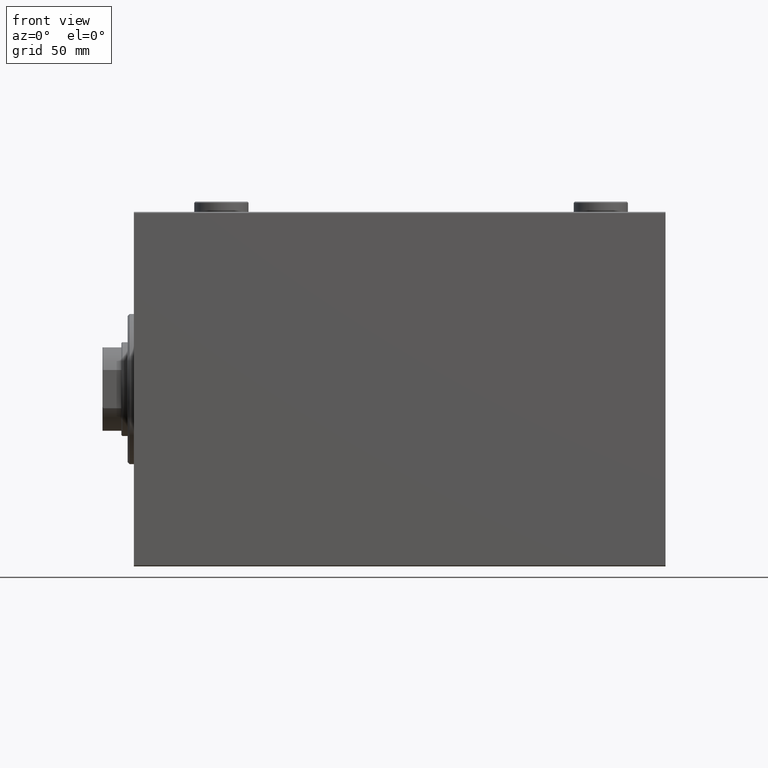
[diagram: clean part render]
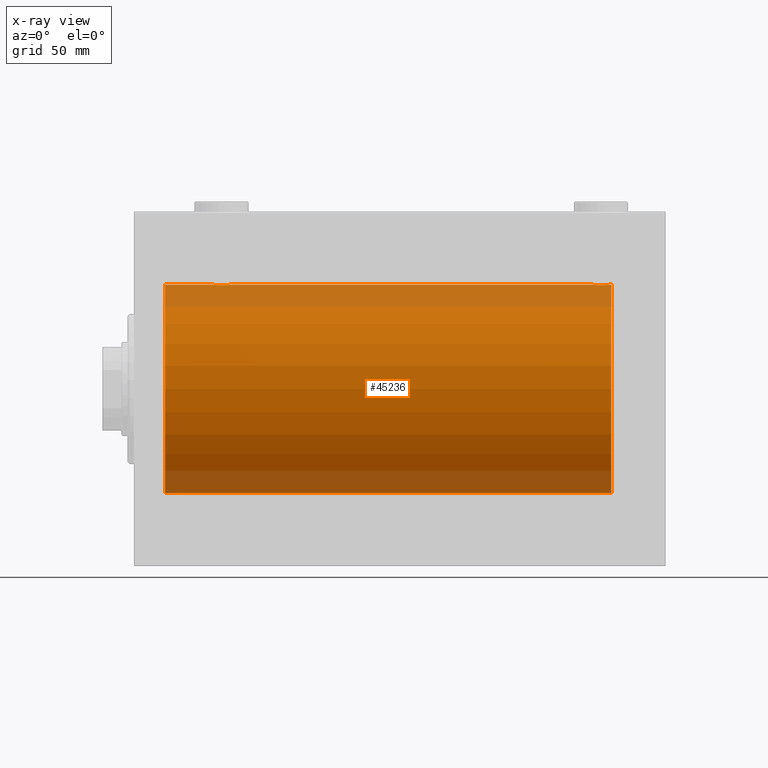
[diagram: x-ray — body ghosted, one internal face saturated and labeled with its STEP entity id]
A machine part, front view, then the same camera in x-ray: the body is ghosted and one INTERNAL B-rep face — a face not visible from any outside direction — is saturated and labeled: STEP entity #45236.
In plain terms, the highlighted cylindrical surface (partial cylindrical patch) has radius 50 mm, axis along (-1, -0, -0).
Its self-contained STEP definition (entity closure, byte-faithful):
#20 = CARTESIAN_POINT ( 'NONE',  ( 37.96727357902688738, -1.369753890039657085, 49.98188917176553048 ) ) ;
#94 = DIRECTION ( 'NONE',  ( 0.000000000000000000, 0.000000000000000000, 1.000000000000000000 ) ) ;
#213 = CARTESIAN_POINT ( 'NONE',  ( 39.41179785323800644, -3.382416624899780899, -49.88570010427955737 ) ) ;
#241 = CARTESIAN_POINT ( 'NONE',  ( 222.1178295051556120, -3.820681512513405931, -49.85392475515401145 ) ) ;
#472 = CARTESIAN_POINT ( 'NONE',  ( 219.7775736447922270, -0.5587117664567382569, -49.99763378604802710 ) ) ;
#804 = VERTEX_POINT ( 'NONE', #38915 ) ;
#933 = CARTESIAN_POINT ( 'NONE',  ( 228.1143191330600359, -1.101350136471743069, -49.98862054280448319 ) ) ;
#1008 = CARTESIAN_POINT ( 'NONE',  ( 226.8069783183931349, -3.203153387937327512, 49.89767833571684008 ) ) ;
#1234 = CARTESIAN_POINT ( 'NONE',  ( 223.4400213230435668, -4.222042462213138947, 49.82145436824653473 ) ) ;
#1255 = CIRCLE ( 'NONE', #27781, 50.00000000000000000 ) ;
#1343 = ORIENTED_EDGE ( 'NONE', *, *, #34483, .T. ) ;
#1690 = CARTESIAN_POINT ( 'NONE',  ( 224.5540856488015322, -4.222816005855221100, 49.82138837911247009 ) ) ;
#1918 = CARTESIAN_POINT ( 'NONE',  ( 221.1884693348458200, -3.199146701881678823, 49.89793607725462010 ) ) ;
#2798 = CARTESIAN_POINT ( 'NONE',  ( 38.17899418014773971, -1.881229021238131294, 49.96525240872482954 ) ) ;
#2994 = CARTESIAN_POINT ( 'NONE',  ( 37.96920203844657493, -1.375411031076047230, -49.98173289062308555 ) ) ;
#3031 = CARTESIAN_POINT ( 'NONE',  ( 42.27724927037918690, -4.250219976861652427, 49.81902879621014080 ) ) ;
#3183 = DIRECTION ( 'NONE',  ( -1.000000000000000000, -0.000000000000000000, -0.000000000000000000 ) ) ;
#3226 = CARTESIAN_POINT ( 'NONE',  ( 43.10323296034216156, -4.113647494206477795, -49.83052139214893117 ) ) ;
#3328 = CYLINDRICAL_SURFACE ( 'NONE', #8774, 50.00000000000000000 ) ;
#3493 = CARTESIAN_POINT ( 'NONE',  ( 45.37519984081966840, -2.597781786597467057, 49.93300953359123184 ) ) ;
#3697 = CARTESIAN_POINT ( 'NONE',  ( 39.87368355124921493, -3.690299572754719648, -49.86386974736159061 ) ) ;
#3727 = CARTESIAN_POINT ( 'NONE',  ( 225.3733343657904697, -4.031616700143205279, -49.83731072121799599 ) ) ;
#3922 = CARTESIAN_POINT ( 'NONE',  ( 46.22310752799000255, -0.5531336717328981800, -49.99769193709643389 ) ) ;
#3949 = CARTESIAN_POINT ( 'NONE',  ( 220.3139716787804332, -2.133925816755204874, -49.95498245321555686 ) ) ;
#4178 = CARTESIAN_POINT ( 'NONE',  ( 219.8875029891967188, -1.108337267831515982, -49.98846998601261760 ) ) ;
#4345 = EDGE_CURVE ( 'NONE', #28933, #9229, #22406, .T. ) ;
#4716 = CARTESIAN_POINT ( 'NONE',  ( 228.1124970108033949, -1.108337267831494222, 49.98846998601261760 ) ) ;
#4737 = CIRCLE ( 'NONE', #32747, 50.00000000000000000 ) ;
#4799 = CARTESIAN_POINT ( 'NONE',  ( 229.0000000000000000, 0.000000000000000000, 50.00000000000000000 ) ) ;
#4941 = CARTESIAN_POINT ( 'NONE',  ( 228.2500000000000568, -0.2808785465865649145, 50.00000000000001421 ) ) ;
#5179 = CARTESIAN_POINT ( 'NONE',  ( 220.6211828273626452, -2.593114840406131716, 49.93325460257641168 ) ) ;
#5406 = CARTESIAN_POINT ( 'NONE',  ( 226.1263164487508277, -3.690299572754730306, 49.86386974736159061 ) ) ;
#5789 = CARTESIAN_POINT ( 'NONE',  ( 228.2500000000000284, 6.123233970934102801E-15, -50.00000000000000000 ) ) ;
#6268 = CARTESIAN_POINT ( 'NONE',  ( 46.22242635520782272, -0.5587117664567085029, 49.99763378604804132 ) ) ;
#6342 = CARTESIAN_POINT ( 'NONE',  ( 229.0000000000000000, 6.123233995736764507E-15, -50.00000000000000000 ) ) ;
#6461 = CARTESIAN_POINT ( 'NONE',  ( 45.82100581985226029, -1.881229021238118859, -49.96525240872481533 ) ) ;
#6571 = CARTESIAN_POINT ( 'NONE',  ( 229.0000000000000000, 0.000000000000000000, 0.000000000000000000 ) ) ;
#6699 = CARTESIAN_POINT ( 'NONE',  ( 46.25000000000001421, -0.2773743941468467811, -50.00000000000002132 ) ) ;
#6735 = CARTESIAN_POINT ( 'NONE',  ( 46.25000000000000000, 6.549608351002387256E-15, 50.00000000000000000 ) ) ;
#6932 = CARTESIAN_POINT ( 'NONE',  ( 40.63289352445426772, -4.033756670430847180, -49.83713703490975888 ) ) ;
#6963 = CARTESIAN_POINT ( 'NONE',  ( 39.86863600553845544, -3.687400765141540138, 49.86408552998298660 ) ) ;
#7164 = CARTESIAN_POINT ( 'NONE',  ( 45.37881717263736192, -2.593114840406123722, -49.93325460257639037 ) ) ;
#7167 = CARTESIAN_POINT ( 'NONE',  ( 229.0000000000000000, 0.000000000000000000, 50.00000000000000000 ) ) ;
#7194 = CARTESIAN_POINT ( 'NONE',  ( 46.03079796155343217, -1.375411031076034352, 49.98173289062309976 ) ) ;
#7395 = CARTESIAN_POINT ( 'NONE',  ( 37.75000000000000711, -0.2808785465865692443, -50.00000000000001421 ) ) ;
#7869 = CARTESIAN_POINT ( 'NONE',  ( 227.6893715567939580, -2.128188802142370495, -49.95522967821975158 ) ) ;
#7999 = CARTESIAN_POINT ( 'NONE',  ( 229.0000000000000000, 0.000000000000000000, 50.00000000000000000 ) ) ;
#8103 = CARTESIAN_POINT ( 'NONE',  ( 221.1930216816069503, -3.203153387937343499, -49.89767833571684008 ) ) ;
#8621 = CARTESIAN_POINT ( 'NONE',  ( 220.3106284432061841, -2.128188802142365166, 49.95522967821975158 ) ) ;
#8774 = AXIS2_PLACEMENT_3D ( 'NONE', #6571, #14178, #13256 ) ;
#9167 = LINE ( 'NONE', #37361, #25554 ) ;
#9229 = VERTEX_POINT ( 'NONE', #24763 ) ;
#9666 = DIRECTION ( 'NONE',  ( -1.000000000000000000, -0.000000000000000000, -0.000000000000000000 ) ) ;
#9723 = CARTESIAN_POINT ( 'NONE',  ( 45.81839248987871116, -1.886522330773410250, 49.96505190380065642 ) ) ;
#10411 = CARTESIAN_POINT ( 'NONE',  ( 40.11255260607201478, -3.818052230167726879, 49.85412671291930309 ) ) ;
#10416 = ORIENTED_EDGE ( 'NONE', *, *, #22446, .T. ) ;
#10597 = CARTESIAN_POINT ( 'NONE',  ( 40.11782950515556934, -3.820681512513380618, -49.85392475515399724 ) ) ;
#10835 = CARTESIAN_POINT ( 'NONE',  ( 39.19302168160691480, -3.203153387937326624, -49.89767833571684008 ) ) ;
#10860 = CARTESIAN_POINT ( 'NONE',  ( 221.8736835512492576, -3.690299572754756952, -49.86386974736159061 ) ) ;
#10991 = VERTEX_POINT ( 'NONE', #7999 ) ;
#11092 = CARTESIAN_POINT ( 'NONE',  ( 225.8874473939280563, -3.818052230167736205, -49.85412671291930309 ) ) ;
#11252 = LINE ( 'NONE', #4799, #21413 ) ;
#11631 = CARTESIAN_POINT ( 'NONE',  ( 220.1789941801477539, -1.881229021238122856, 49.96525240872482954 ) ) ;
#12306 = CARTESIAN_POINT ( 'NONE',  ( 222.6266656342096724, -4.031616700143203502, 49.83731072121799599 ) ) ;
#12537 = DIRECTION ( 'NONE',  ( 0.000000000000000000, 0.000000000000000000, 1.000000000000000000 ) ) ;
#12546 = CARTESIAN_POINT ( 'NONE',  ( 224.2772492703792011, -4.250219976861659532, 49.81902879621013369 ) ) ;
#12978 = DIRECTION ( 'NONE',  ( -1.000000000000000000, 0.000000000000000000, 0.000000000000000000 ) ) ;
#13185 = CARTESIAN_POINT ( 'NONE',  ( 46.11249701080335228, -1.108337267831486228, 49.98846998601261760 ) ) ;
#13256 = DIRECTION ( 'NONE',  ( 0.000000000000000000, 0.000000000000000000, 1.000000000000000000 ) ) ;
#13272 = CARTESIAN_POINT ( 'NONE',  ( 46.25000000000000000, 6.123233970928580774E-15, -50.00000000000000000 ) ) ;
#13310 = VERTEX_POINT ( 'NONE', #27443 ) ;
#13613 = DIRECTION ( 'NONE',  ( -1.000000000000000000, -0.000000000000000000, -0.000000000000000000 ) ) ;
#13838 = CARTESIAN_POINT ( 'NONE',  ( 37.75000000000000711, -2.480809774739037926E-23, 50.00000000000000000 ) ) ;
#14078 = CARTESIAN_POINT ( 'NONE',  ( 45.68937155679385143, -2.128188802142360281, -49.95522967821973737 ) ) ;
#14111 = CARTESIAN_POINT ( 'NONE',  ( 39.18846933484581996, -3.199146701881677934, 49.89793607725461300 ) ) ;
#14178 = DIRECTION ( 'NONE',  ( -1.000000000000000000, -0.000000000000000000, -0.000000000000000000 ) ) ;
#14298 = CARTESIAN_POINT ( 'NONE',  ( 38.18160751012128884, -1.886522330773421574, -49.96505190380066352 ) ) ;
#14325 = CARTESIAN_POINT ( 'NONE',  ( 223.7227507296208842, -4.250219976861668414, -49.81902879621013369 ) ) ;
#14531 = CARTESIAN_POINT ( 'NONE',  ( 37.75000000000000711, -6.867186738287116403E-15, -50.00000000000000000 ) ) ;
#14558 = CARTESIAN_POINT ( 'NONE',  ( 219.7500000000000853, -0.2808785465865917264, -50.00000000000001421 ) ) ;
#14699 = VERTEX_POINT ( 'NONE', #42376 ) ;
#14797 = CARTESIAN_POINT ( 'NONE',  ( 228.2231075279900381, -0.5531336717329033981, -49.99769193709643389 ) ) ;
#15091 = CARTESIAN_POINT ( 'NONE',  ( 229.0000000000000000, 6.123233995736764507E-15, -50.00000000000000000 ) ) ;
#15327 = CARTESIAN_POINT ( 'NONE',  ( 225.3671064755457678, -4.033756670430863167, 49.83713703490974467 ) ) ;
#15769 = CARTESIAN_POINT ( 'NONE',  ( 228.2500000000000284, 3.884128014896634599E-15, 50.00000000000000000 ) ) ;
#16000 = CARTESIAN_POINT ( 'NONE',  ( 219.9672735790269087, -1.369753890039649091, 49.98188917176553048 ) ) ;
#16178 = ORIENTED_EDGE ( 'NONE', *, *, #33238, .T. ) ;
#16207 = EDGE_CURVE ( 'NONE', #10991, #42959, #11252, .T. ) ;
#16373 = CARTESIAN_POINT ( 'NONE',  ( 229.0000000000000000, 0.000000000000000000, 50.00000000000000000 ) ) ;
#16646 = CARTESIAN_POINT ( 'NONE',  ( 37.77689247201000455, -0.5531336717329072838, 49.99769193709643389 ) ) ;
#16883 = CARTESIAN_POINT ( 'NONE',  ( 46.25000000000004974, -0.2808785465865676345, 50.00000000000002842 ) ) ;
#17077 = EDGE_CURVE ( 'NONE', #24185, #44871, #42013, .T. ) ;
#17180 = DIRECTION ( 'NONE',  ( -1.000000000000000000, 0.000000000000000000, 0.000000000000000000 ) ) ;
#17302 = CARTESIAN_POINT ( 'NONE',  ( 43.88744739392798522, -3.818052230167713113, -49.85412671291930309 ) ) ;
#17478 = VECTOR ( 'NONE', #26675, 1000.000000000000000 ) ;
#17644 = CARTESIAN_POINT ( 'NONE',  ( 229.0000000000000000, 0.000000000000000000, 0.000000000000000000 ) ) ;
#17799 = CARTESIAN_POINT ( 'NONE',  ( 223.4459143511985246, -4.222816005855230870, -49.82138837911247009 ) ) ;
#18015 = ORIENTED_EDGE ( 'NONE', *, *, #4345, .T. ) ;
#18227 = B_SPLINE_CURVE_WITH_KNOTS ( 'NONE', 3,
 ( #24034, #31669, #16646, #28192, #20, #2798, #20339, #38138, #24271, #14111, #38603, #6963, #10411, #44856, #34897, #24724, #38824, #3031, #20574, #30740, #31199, #41378, #27731, #21029, #24501, #35131, #3493, #42303, #9723, #7194, #13185, #6268, #16883, #6735 ),
 .UNSPECIFIED., .F., .F.,
 ( 4, 2, 2, 2, 2, 2, 2, 2, 2, 2, 2, 2, 2, 2, 2, 2, 4 ),
 ( 0.01329343152928758910, 0.01412407817529637635, 0.01495472482130516534, 0.01578537146731395432, 0.01661601811332274331, 0.01744666475933152883, 0.01827731140534032128, 0.01910795805134910680, 0.01993860469735789578, 0.02076925134336668477, 0.02159989798937547029, 0.02243054463538425927, 0.02326119128139304826, 0.02409183792740183377, 0.02492248457341062276, 0.02575313121941941175, 0.02658377786542820073 ),
 .UNSPECIFIED. ) ;
#18253 = CARTESIAN_POINT ( 'NONE',  ( 219.7500000000000284, -2.307503314381865081E-14, -50.00000000000000000 ) ) ;
#18484 = CARTESIAN_POINT ( 'NONE',  ( 222.9026238212096587, -4.115209769591131383, -49.83039196709102470 ) ) ;
#18868 = DIRECTION ( 'NONE',  ( -1.000000000000000000, -0.000000000000000000, -0.000000000000000000 ) ) ;
#19245 = CARTESIAN_POINT ( 'NONE',  ( 227.6860283212195668, -2.133925816755189775, 49.95498245321557818 ) ) ;
#19464 = CARTESIAN_POINT ( 'NONE',  ( 225.8821704948444733, -3.820681512513395717, 49.85392475515401145 ) ) ;
#19974 = LINE ( 'NONE', #6342, #17478 ) ;
#20339 = CARTESIAN_POINT ( 'NONE',  ( 38.31062844320614857, -2.128188802142370495, 49.95522967821975868 ) ) ;
#20509 = B_SPLINE_CURVE_WITH_KNOTS ( 'NONE', 3,
 ( #40499, #40270, #22937, #37040, #16000, #11631, #8621, #5179, #44209, #1918, #33112, #29420, #22707, #12306, #29185, #1234, #30093, #12546, #1690, #23160, #15327, #19464, #5406, #25725, #1008, #33337, #43297, #19245, #29865, #26629, #4716, #39825, #4941, #15769 ),
 .UNSPECIFIED., .F., .F.,
 ( 4, 2, 2, 2, 2, 2, 2, 2, 2, 2, 2, 2, 2, 2, 2, 2, 4 ),
 ( 0.01329343152928753879, 0.01412407817529632258, 0.01495472482130510636, 0.01578537146731389187, 0.01661601811332267392, 0.01744666475933145944, 0.01827731140534024495, 0.01910795805134903047, 0.01993860469735781252, 0.02076925134336659456, 0.02159989798937538008, 0.02243054463538416560, 0.02326119128139295111, 0.02409183792740173316, 0.02492248457341051868, 0.02575313121941930072, 0.02658377786542808624 ),
 .UNSPECIFIED. ) ;
#20536 = CARTESIAN_POINT ( 'NONE',  ( 46.25000000000000000, 6.123233970928580774E-15, -50.00000000000000000 ) ) ;
#20574 = CARTESIAN_POINT ( 'NONE',  ( 42.55408564880149669, -4.222816005855215771, 49.82138837911247009 ) ) ;
#20773 = CARTESIAN_POINT ( 'NONE',  ( 44.81153066515419425, -3.199146701881665500, -49.89793607725460589 ) ) ;
#20997 = CARTESIAN_POINT ( 'NONE',  ( 44.59312720885954917, -3.378657745070622997, -49.88595615988429444 ) ) ;
#21029 = CARTESIAN_POINT ( 'NONE',  ( 44.58820214676201488, -3.382416624899783120, 49.88570010427955737 ) ) ;
#21232 = CARTESIAN_POINT ( 'NONE',  ( 45.20303561951989479, -2.807099414226270628, -49.92152599098506016 ) ) ;
#21263 = CARTESIAN_POINT ( 'NONE',  ( 228.2500000000000568, -0.2773743941468493901, -50.00000000000000711 ) ) ;
#21413 = VECTOR ( 'NONE', #18868, 1000.000000000000000 ) ;
#21495 = CARTESIAN_POINT ( 'NONE',  ( 220.8007807203871948, -2.811461347331129179, -49.92127983148851200 ) ) ;
#22406 = B_SPLINE_CURVE_WITH_KNOTS ( 'NONE', 3,
 ( #28191, #21263, #14797, #933, #32580, #35364, #7869, #39286, #42527, #25636, #24955, #36279, #11092, #3727, #25186, #28416, #39746, #14325, #17799, #18484, #31890, #241, #10860, #39059, #8103, #21495, #35586, #3949, #32110, #35809, #4178, #472, #14558, #18253 ),
 .UNSPECIFIED., .F., .F.,
 ( 4, 2, 2, 2, 2, 2, 2, 2, 2, 2, 2, 2, 2, 2, 2, 2, 4 ),
 ( 0.01329343152928757002, 0.01412407817529635727, 0.01495472482130514279, 0.01578537146731393004, 0.01661601811332271555, 0.01744666475933150107, 0.01827731140534029006, 0.01910795805134907557, 0.01993860469735786456, 0.02076925134336665008, 0.02159989798937543559, 0.02243054463538422111, 0.02326119128139301009, 0.02409183792740179561, 0.02492248457341058460, 0.02575313121941937011, 0.02658377786542815563 ),
 .UNSPECIFIED. ) ;
#22446 = EDGE_CURVE ( 'NONE', #804, #42959, #20509, .T. ) ;
#22707 = CARTESIAN_POINT ( 'NONE',  ( 222.1125526060720290, -3.818052230167736649, 49.85412671291929598 ) ) ;
#22891 = CARTESIAN_POINT ( 'NONE',  ( 46.25000000000000000, 6.549608351002387256E-15, 50.00000000000000000 ) ) ;
#22937 = CARTESIAN_POINT ( 'NONE',  ( 219.7768924720100472, -0.5531336717329080610, 49.99769193709643389 ) ) ;
#23160 = CARTESIAN_POINT ( 'NONE',  ( 225.0973761787904550, -4.115209769591120725, 49.83039196709102470 ) ) ;
#23806 = ORIENTED_EDGE ( 'NONE', *, *, #29748, .T. ) ;
#23818 = CARTESIAN_POINT ( 'NONE',  ( 14.99999999999998579, 0.000000000000000000, 0.000000000000000000 ) ) ;
#24034 = CARTESIAN_POINT ( 'NONE',  ( 37.75000000000000711, -2.480809774739037926E-23, 50.00000000000000000 ) ) ;
#24185 = VERTEX_POINT ( 'NONE', #13838 ) ;
#24271 = CARTESIAN_POINT ( 'NONE',  ( 38.79696438048009099, -2.807099414226282175, 49.92152599098506727 ) ) ;
#24501 = CARTESIAN_POINT ( 'NONE',  ( 44.80697831839310652, -3.203153387937319962, 49.89767833571683298 ) ) ;
#24693 = CARTESIAN_POINT ( 'NONE',  ( 38.62480015918033871, -2.597781786597466613, -49.93300953359121763 ) ) ;
#24724 = CARTESIAN_POINT ( 'NONE',  ( 41.44002132304352415, -4.222042462213131842, 49.82145436824653473 ) ) ;
#24763 = CARTESIAN_POINT ( 'NONE',  ( 219.7500000000000284, -2.307503314381865081E-14, -50.00000000000000000 ) ) ;
#24786 = ORIENTED_EDGE ( 'NONE', *, *, #28710, .T. ) ;
#24801 = VERTEX_POINT ( 'NONE', #13272 ) ;
#24955 = CARTESIAN_POINT ( 'NONE',  ( 226.5931272088596415, -3.378657745070642981, -49.88595615988430154 ) ) ;
#25186 = CARTESIAN_POINT ( 'NONE',  ( 225.1032329603422113, -4.113647494206503552, -49.83052139214891696 ) ) ;
#25554 = VECTOR ( 'NONE', #33883, 1000.000000000000000 ) ;
#25636 = CARTESIAN_POINT ( 'NONE',  ( 226.8115306651542085, -3.199146701881684596, -49.89793607725460589 ) ) ;
#25725 = CARTESIAN_POINT ( 'NONE',  ( 226.5882021467620859, -3.382416624899788893, 49.88570010427955737 ) ) ;
#26154 = EDGE_CURVE ( 'NONE', #804, #26835, #45061, .T. ) ;
#26629 = CARTESIAN_POINT ( 'NONE',  ( 228.0307979615534748, -1.375411031076043678, 49.98173289062309976 ) ) ;
#26675 = DIRECTION ( 'NONE',  ( -1.000000000000000000, -0.000000000000000000, -0.000000000000000000 ) ) ;
#26835 = VERTEX_POINT ( 'NONE', #22891 ) ;
#27020 = ORIENTED_EDGE ( 'NONE', *, *, #26154, .F. ) ;
#27293 = EDGE_CURVE ( 'NONE', #35773, #28933, #35286, .T. ) ;
#27443 = CARTESIAN_POINT ( 'NONE',  ( 37.75000000000000711, -6.867186738287116403E-15, -50.00000000000000000 ) ) ;
#27692 = CARTESIAN_POINT ( 'NONE',  ( 42.55997867695647585, -4.222042462213118519, -49.82145436824654894 ) ) ;
#27731 = CARTESIAN_POINT ( 'NONE',  ( 44.12631644875080639, -3.690299572754724977, 49.86386974736159772 ) ) ;
#27781 = AXIS2_PLACEMENT_3D ( 'NONE', #17644, #17180, #94 ) ;
#27879 = EDGE_LOOP ( 'NONE', ( #38277, #37779, #18015, #1343, #23806, #36407, #24786, #34684, #16178, #27020, #10416, #38515 ) ) ;
#28160 = CARTESIAN_POINT ( 'NONE',  ( 42.28395287026698668, -4.249777379711400016, -49.81906655360198499 ) ) ;
#28191 = CARTESIAN_POINT ( 'NONE',  ( 228.2500000000000284, 6.123233970934102801E-15, -50.00000000000000000 ) ) ;
#28192 = CARTESIAN_POINT ( 'NONE',  ( 37.88568086693990722, -1.101350136471746843, 49.98862054280448319 ) ) ;
#28384 = CARTESIAN_POINT ( 'NONE',  ( 37.88750298919665482, -1.108337267831493556, -49.98846998601261760 ) ) ;
#28416 = CARTESIAN_POINT ( 'NONE',  ( 224.5599786769565469, -4.222042462213146941, -49.82145436824653473 ) ) ;
#28710 = EDGE_CURVE ( 'NONE', #14699, #44871, #4737, .T. ) ;
#28871 = B_SPLINE_CURVE_WITH_KNOTS ( 'NONE', 3,
 ( #20536, #6699, #3922, #31636, #45511, #6461, #14078, #7164, #21232, #20773, #20997, #35334, #17302, #41804, #3226, #27692, #28160, #31398, #38568, #42271, #6932, #10597, #3697, #213, #10835, #45279, #24693, #38795, #14298, #2994, #28384, #39029, #7395, #14531 ),
 .UNSPECIFIED., .F., .F.,
 ( 4, 2, 2, 2, 2, 2, 2, 2, 2, 2, 2, 2, 2, 2, 2, 2, 4 ),
 ( 0.01329343152928757002, 0.01412407817529635554, 0.01495472482130513932, 0.01578537146731392310, 0.01661601811332270862, 0.01744666475933149413, 0.01827731140534027965, 0.01910795805134906516, 0.01993860469735784721, 0.02076925134336663273, 0.02159989798937541824, 0.02243054463538420029, 0.02326119128139298581, 0.02409183792740176785, 0.02492248457341054990, 0.02575313121941933542, 0.02658377786542811747 ),
 .UNSPECIFIED. ) ;
#28933 = VERTEX_POINT ( 'NONE', #5789 ) ;
#29185 = CARTESIAN_POINT ( 'NONE',  ( 222.8967670396579024, -4.113647494206499111, 49.83052139214891696 ) ) ;
#29420 = CARTESIAN_POINT ( 'NONE',  ( 221.8686360055384910, -3.687400765141541026, 49.86408552998298660 ) ) ;
#29748 = EDGE_CURVE ( 'NONE', #24801, #13310, #28871, .T. ) ;
#29865 = CARTESIAN_POINT ( 'NONE',  ( 227.8183924898787609, -1.886522330773421574, 49.96505190380066352 ) ) ;
#30093 = CARTESIAN_POINT ( 'NONE',  ( 223.7160471297330560, -4.249777379711418668, 49.81906655360197789 ) ) ;
#30740 = CARTESIAN_POINT ( 'NONE',  ( 43.09737617879037685, -4.115209769591117173, 49.83039196709103180 ) ) ;
#31199 = CARTESIAN_POINT ( 'NONE',  ( 43.36710647554575360, -4.033756670430853397, 49.83713703490974467 ) ) ;
#31398 = CARTESIAN_POINT ( 'NONE',  ( 41.72275072962081310, -4.250219976861640880, -49.81902879621016211 ) ) ;
#31636 = CARTESIAN_POINT ( 'NONE',  ( 46.11431913306008568, -1.101350136471737295, -49.98862054280449030 ) ) ;
#31669 = CARTESIAN_POINT ( 'NONE',  ( 37.75000000000000711, -0.2773743941468536089, 50.00000000000000000 ) ) ;
#31821 = CARTESIAN_POINT ( 'NONE',  ( 229.0000000000000000, 6.123233995736764507E-15, -50.00000000000000000 ) ) ;
#31890 = CARTESIAN_POINT ( 'NONE',  ( 222.6328935244542890, -4.033756670430873825, -49.83713703490974467 ) ) ;
#32110 = CARTESIAN_POINT ( 'NONE',  ( 220.1816075101212959, -1.886522330773437339, -49.96505190380065642 ) ) ;
#32580 = CARTESIAN_POINT ( 'NONE',  ( 228.0327264209731766, -1.369753890039650646, -49.98188917176553048 ) ) ;
#32747 = AXIS2_PLACEMENT_3D ( 'NONE', #23818, #12978, #12537 ) ;
#32816 = VECTOR ( 'NONE', #13613, 1000.000000000000000 ) ;
#32961 = CARTESIAN_POINT ( 'NONE',  ( 228.2500000000000284, 3.884128014896634599E-15, 50.00000000000000000 ) ) ;
#33112 = CARTESIAN_POINT ( 'NONE',  ( 221.4068727911404721, -3.378657745070632767, 49.88595615988430154 ) ) ;
#33238 = EDGE_CURVE ( 'NONE', #24185, #26835, #18227, .T. ) ;
#33337 = CARTESIAN_POINT ( 'NONE',  ( 227.1992192796128620, -2.811461347331109639, 49.92127983148852621 ) ) ;
#33883 = DIRECTION ( 'NONE',  ( -1.000000000000000000, -0.000000000000000000, -0.000000000000000000 ) ) ;
#34007 = VECTOR ( 'NONE', #9666, 1000.000000000000000 ) ;
#34109 = CARTESIAN_POINT ( 'NONE',  ( 14.99999999999998579, 0.000000000000000000, 50.00000000000000000 ) ) ;
#34483 = EDGE_CURVE ( 'NONE', #9229, #24801, #9167, .T. ) ;
#34684 = ORIENTED_EDGE ( 'NONE', *, *, #17077, .F. ) ;
#34897 = CARTESIAN_POINT ( 'NONE',  ( 40.89676703965784554, -4.113647494206489341, 49.83052139214891696 ) ) ;
#35131 = CARTESIAN_POINT ( 'NONE',  ( 45.19921927961284069, -2.811461347331105642, 49.92127983148852621 ) ) ;
#35286 = LINE ( 'NONE', #31821, #45291 ) ;
#35334 = CARTESIAN_POINT ( 'NONE',  ( 44.13136399446154456, -3.687400765141527259, -49.86408552998295818 ) ) ;
#35364 = CARTESIAN_POINT ( 'NONE',  ( 227.8210058198523598, -1.881229021238126409, -49.96525240872482954 ) ) ;
#35434 = FACE_OUTER_BOUND ( 'NONE', #27879, .T. ) ;
#35559 = EDGE_CURVE ( 'NONE', #13310, #14699, #19974, .T. ) ;
#35586 = CARTESIAN_POINT ( 'NONE',  ( 220.6248001591803813, -2.597781786597489706, -49.93300953359122474 ) ) ;
#35625 = EDGE_CURVE ( 'NONE', #35773, #10991, #1255, .T. ) ;
#35773 = VERTEX_POINT ( 'NONE', #15091 ) ;
#35809 = CARTESIAN_POINT ( 'NONE',  ( 219.9692020384465820, -1.375411031076060331, -49.98173289062309976 ) ) ;
#36279 = CARTESIAN_POINT ( 'NONE',  ( 226.1313639944615659, -3.687400765141549019, -49.86408552998298660 ) ) ;
#36407 = ORIENTED_EDGE ( 'NONE', *, *, #35559, .T. ) ;
#37040 = CARTESIAN_POINT ( 'NONE',  ( 219.8856808669399356, -1.101350136471747510, 49.98862054280448319 ) ) ;
#37361 = CARTESIAN_POINT ( 'NONE',  ( 229.0000000000000000, 6.123233995736764507E-15, -50.00000000000000000 ) ) ;
#37779 = ORIENTED_EDGE ( 'NONE', *, *, #27293, .T. ) ;
#38138 = CARTESIAN_POINT ( 'NONE',  ( 38.62118282736264518, -2.593114840406135713, 49.93325460257641168 ) ) ;
#38277 = ORIENTED_EDGE ( 'NONE', *, *, #35625, .F. ) ;
#38515 = ORIENTED_EDGE ( 'NONE', *, *, #16207, .F. ) ;
#38568 = CARTESIAN_POINT ( 'NONE',  ( 41.44591435119853173, -4.222816005855205113, -49.82138837911246299 ) ) ;
#38603 = CARTESIAN_POINT ( 'NONE',  ( 39.40687279114045083, -3.378657745070634544, 49.88595615988430154 ) ) ;
#38795 = CARTESIAN_POINT ( 'NONE',  ( 38.31397167878049714, -2.133925816755183114, -49.95498245321555686 ) ) ;
#38824 = CARTESIAN_POINT ( 'NONE',  ( 41.71604712973302043, -4.249777379711411562, 49.81906655360197789 ) ) ;
#38915 = CARTESIAN_POINT ( 'NONE',  ( 219.7500000000000284, -2.480257572105383217E-23, 50.00000000000000000 ) ) ;
#39029 = CARTESIAN_POINT ( 'NONE',  ( 37.77757364479218438, -0.5587117664567184949, -49.99763378604801289 ) ) ;
#39059 = CARTESIAN_POINT ( 'NONE',  ( 221.4117978532380562, -3.382416624899818647, -49.88570010427955737 ) ) ;
#39286 = CARTESIAN_POINT ( 'NONE',  ( 227.3788171726373264, -2.593114840406136157, -49.93325460257641879 ) ) ;
#39746 = CARTESIAN_POINT ( 'NONE',  ( 224.2839528702670293, -4.249777379711429326, -49.81906655360197789 ) ) ;
#39825 = CARTESIAN_POINT ( 'NONE',  ( 228.2224263552078014, -0.5587117664567151643, 49.99763378604802000 ) ) ;
#40270 = CARTESIAN_POINT ( 'NONE',  ( 219.7500000000000000, -0.2773743941468553853, 50.00000000000000711 ) ) ;
#40499 = CARTESIAN_POINT ( 'NONE',  ( 219.7500000000000284, -2.480257572105383217E-23, 50.00000000000000000 ) ) ;
#41378 = CARTESIAN_POINT ( 'NONE',  ( 43.88217049484444487, -3.820681512513385059, 49.85392475515401145 ) ) ;
#41804 = CARTESIAN_POINT ( 'NONE',  ( 43.37333436579037738, -4.031616700143179521, -49.83731072121799599 ) ) ;
#42013 = LINE ( 'NONE', #16373, #34007 ) ;
#42271 = CARTESIAN_POINT ( 'NONE',  ( 40.90262382120963736, -4.115209769591108291, -49.83039196709104601 ) ) ;
#42303 = CARTESIAN_POINT ( 'NONE',  ( 45.68602832121950286, -2.133925816755181337, 49.95498245321556396 ) ) ;
#42376 = CARTESIAN_POINT ( 'NONE',  ( 14.99999999999998579, 6.123233995736764507E-15, -50.00000000000000000 ) ) ;
#42527 = CARTESIAN_POINT ( 'NONE',  ( 227.2030356195199658, -2.807099414226289280, -49.92152599098506727 ) ) ;
#42959 = VERTEX_POINT ( 'NONE', #32961 ) ;
#43297 = CARTESIAN_POINT ( 'NONE',  ( 227.3751998408197039, -2.597781786597475495, 49.93300953359122474 ) ) ;
#44209 = CARTESIAN_POINT ( 'NONE',  ( 220.7969643804801194, -2.807099414226281286, 49.92152599098507437 ) ) ;
#44856 = CARTESIAN_POINT ( 'NONE',  ( 40.62666563420964394, -4.031616700143194620, 49.83731072121800310 ) ) ;
#44871 = VERTEX_POINT ( 'NONE', #34109 ) ;
#45061 = LINE ( 'NONE', #7167, #32816 ) ;
#45236 = ADVANCED_FACE ( 'NONE', ( #35434 ), #3328, .F. ) ;
#45279 = CARTESIAN_POINT ( 'NONE',  ( 38.80078072038718062, -2.811461347331114524, -49.92127983148851200 ) ) ;
#45291 = VECTOR ( 'NONE', #3183, 1000.000000000000000 ) ;
#45511 = CARTESIAN_POINT ( 'NONE',  ( 46.03272642097309841, -1.369753890039645761, -49.98188917176552337 ) ) ;